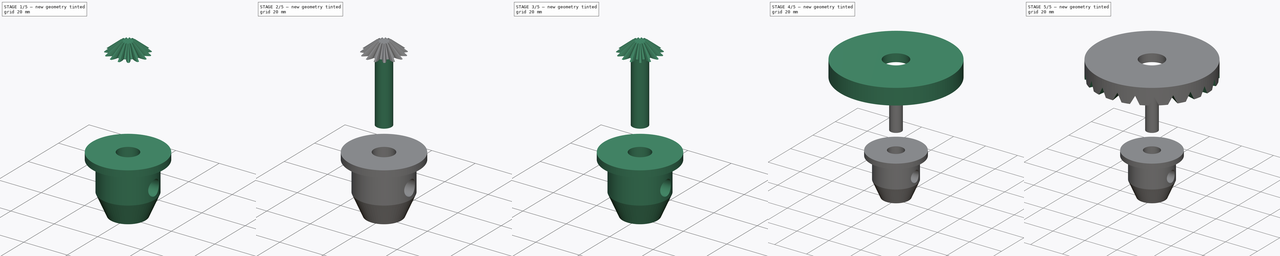
[diagram: build sequence overview — one tinted view per stage of 5, left to right]
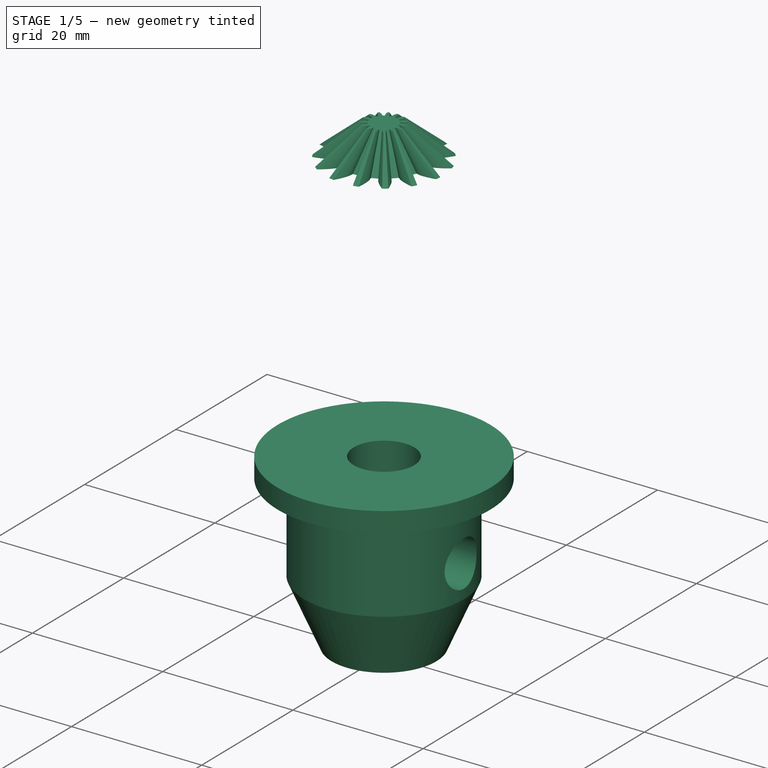
[diagram: stage 1 of 5 — iso view after this stage's code; geometry added in this stage tinted green]
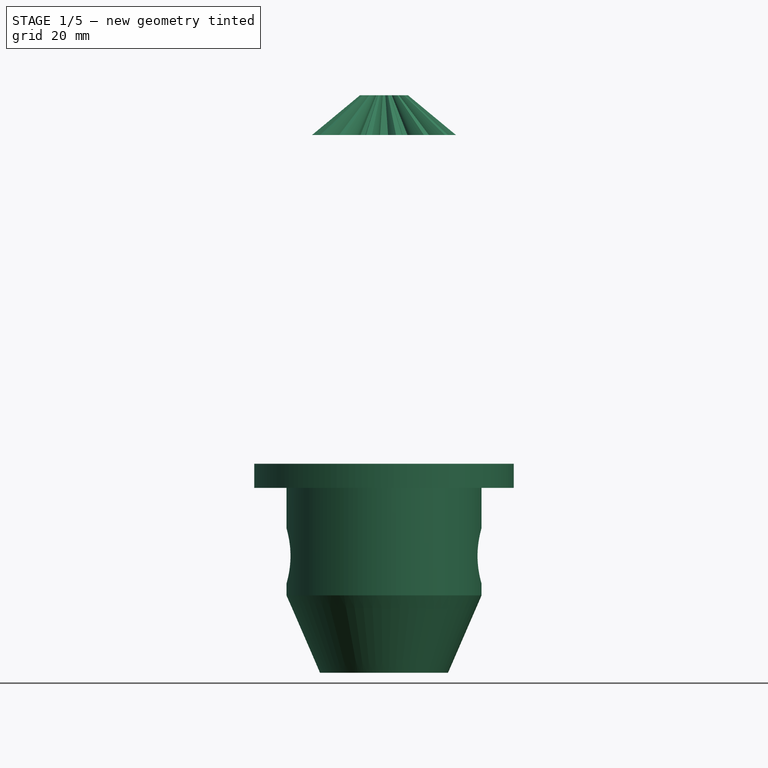
[diagram: stage 1 of 5 — front view after this stage's code; geometry added in this stage tinted green]
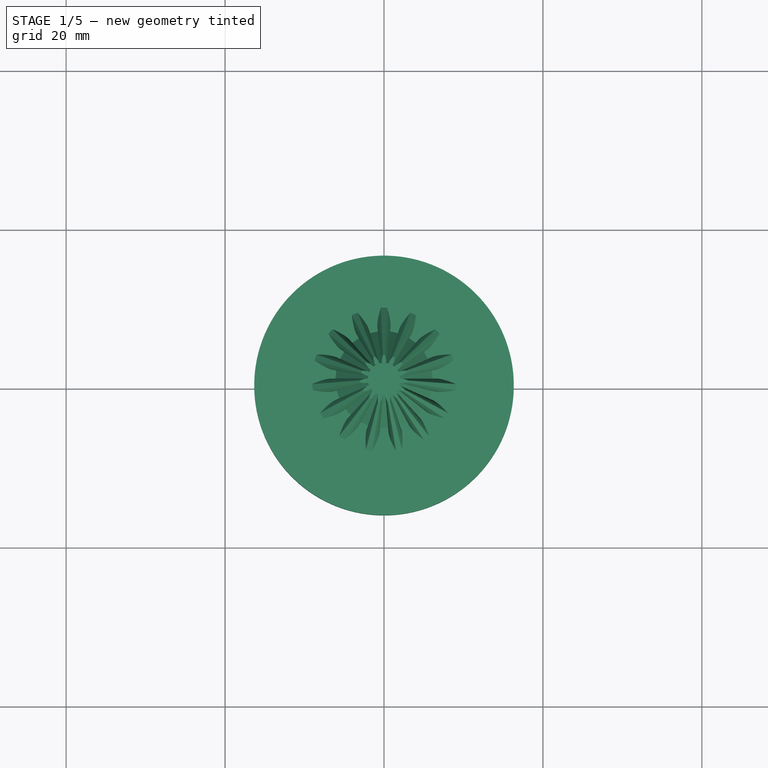
[diagram: stage 1 of 5 — top view after this stage's code; geometry added in this stage tinted green]
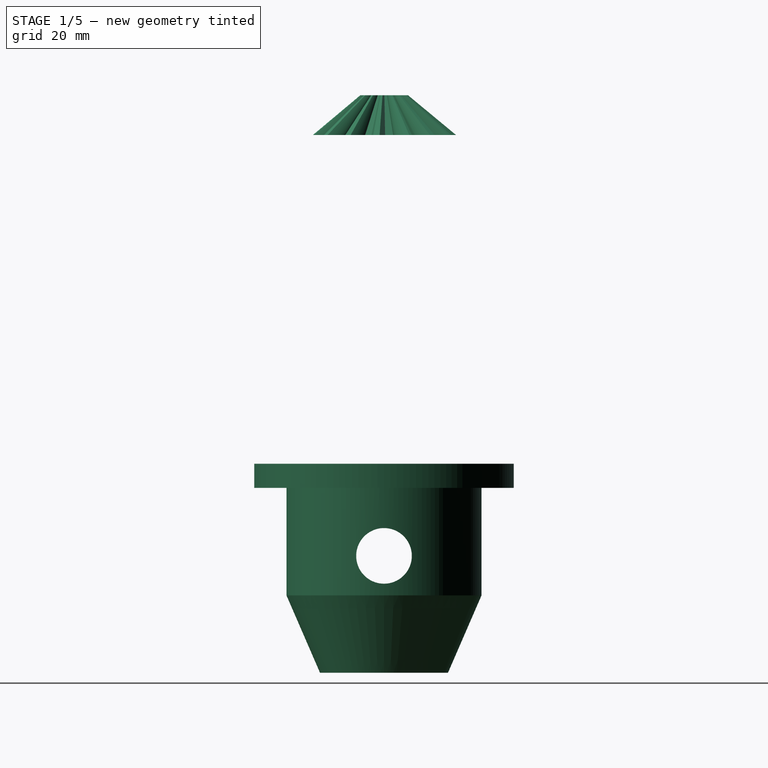
[diagram: stage 1 of 5 — right view after this stage's code; geometry added in this stage tinted green]
FCSTD DOCUMENT  (FreeCAD 0.21R33771 (Git))
Label: Differential Gear Design
License: All rights reserved
LicenseURL: http://en.wikipedia.org/wiki/All_rights_reserved
objects: Sketcher::SketchObject×12, PartDesign::Body×7, PartDesign::Pad×6, Part::FeaturePython×5, PartDesign::FeatureBase×5, PartDesign::Pocket×4, PartDesign::PolarPattern×1, PartDesign::MultiTransform×1, PartDesign::Revolution×1
note: 53 computed .brp shape members not serialized (recipe doc carries the construction recipe); baked Part::Feature solids carry a one-line shape summary decoded from their .brp

FEATURE [PartDesign::Body] Body004  label="Bevel004"
  BaseFeature = -> BevelGear003
  Group = -> [BaseFeature003,Sketch012,Pad004]
  Origin = -> Origin004
  Placement = pos=(8,7e-15,-8) rot=(0.707107,0,-0.707107;3.14159rad)
  Tip = -> Pad004
FEATURE [Part::FeaturePython] BevelGear004  # WARN: FeaturePython — macro-defined, semantics opaque (R4)
  AttacherType = Attacher::AttachEngine3D
  angular_backlash = 0
  backlash = 0
  beta = 0
  clearance = 0.1
  dw = 15
  height = 5
  module = 1
  numpoints = 20
  pitch_angle = 45
  pressure_angle = 20
  reset_origin = true
  teeth = 15
  version = 1.2.0
  expr: angular_backlash = backlash / dw * 360 ° / pi
  expr: dw = teeth * module
FEATURE [PartDesign::FeatureBase] BaseFeature004
  BaseFeature = -> BevelGear004
FEATURE [PartDesign::Body] Body005  label="Bevel005"
  BaseFeature = -> BevelGear004
  Group = -> [BaseFeature004,Sketch013,Pad005]
  Origin = -> Origin005
  Placement = pos=(-0.330464,-31.3067,-6.47571) rot=(-0.506732,0.57686,0.640668;1.92356rad)
  Tip = -> Pad005
FEATURE [Sketcher::SketchObject] Sketch
  FullyConstrained = false
  MapMode = 5
  Placement = pos=(0,0,0) rot=(1,0,0;1.5708rad)
  Support = -> [XZ_Plane006]
  sketch-geometry (8):
    g0: LineSegment StartX=4.64113 StartY=-57.9367 StartZ=0 EndX=4.64113 EndY=-67.6806 EndZ=0
    g1: LineSegment StartX=4.64113 StartY=-67.6806 StartZ=0 EndX=8.05151 EndY=-67.6806 EndZ=0
    g2: LineSegment StartX=8.05151 StartY=-67.6806 StartZ=0 EndX=12.277 EndY=-57.9367 EndZ=0
    g3: LineSegment StartX=16.3339 StartY=-44.4169 StartZ=0 EndX=16.3339 EndY=-41.372 EndZ=0
    g4: LineSegment StartX=16.3339 StartY=-41.372 StartZ=0 EndX=4.64113 EndY=-41.372 EndZ=0
    g5: LineSegment StartX=4.64113 StartY=-41.372 StartZ=0 EndX=4.64113 EndY=-57.9367 EndZ=0
    g6: LineSegment StartX=16.3339 StartY=-44.4169 StartZ=0 EndX=12.277 EndY=-44.4169 EndZ=0
    g7: LineSegment StartX=12.277 StartY=-44.4169 StartZ=0 EndX=12.277 EndY=-57.9367 EndZ=0
  constraints (15):
    c: Vertical(g0)
    c: Coincident(g1,g0)
    c: Horizontal(g1)
    c: Coincident(g2,g1)
    c: Coincident(g4,g3)
    c: Horizontal(g4)
    c: Coincident(g5,g4)
    c: Coincident(g5,g0)
    c: Vertical(g5)
    c: Vertical(g3)
    c: Coincident(g6,g3)
    c: Horizontal(g6)
    c: Coincident(g7,g6)
    c: Coincident(g7,g2)
    c: Vertical(g7)
FEATURE [PartDesign::Revolution] Revolution
  Angle = 360
  Axis = (0,2e-16,1)
  Base = (0,0,0)
  Placement = pos=(0,0,0) rot=(1,0,0;1.5708rad)
  Profile = -> Sketch
  ReferenceAxis = -> Sketch [V_Axis]
  Reversed = true
FEATURE [Sketcher::SketchObject] Sketch014
  FullyConstrained = true
  MapMode = 5
  Placement = pos=(0,0,0) rot=(0.57735,0.57735,0.57735;2.0944rad)
  Support = -> [YZ_Plane006]
FEATURE [Sketcher::SketchObject] Sketch015
  FullyConstrained = false
  MapMode = 5
  Placement = pos=(0,0,0) rot=(0.57735,0.57735,0.57735;2.0944rad)
  Support = -> [YZ_Plane006]
  sketch-geometry (1):
    g0: Circle CenterX=0 CenterY=-52.9697 CenterZ=0 NormalX=0 NormalY=0 NormalZ=1 AngleXU=0 Radius=3.5
  constraints (2):
    c: PointOnObject(g0,g-2)
    c: Diameter(g0) = 7
FEATURE [PartDesign::Pocket] Pocket003
  BaseFeature = -> Revolution
  Direction = (-1,2e-16,-3e-16)
  Length = 26
  Length2 = 5
  Midplane = true
  Placement = pos=(0,0,0) rot=(1,0,0;1.5708rad)
  Profile = -> Sketch015
  ReferenceAxis = -> Sketch015 [N_Axis]
  Type = 0
FEATURE [PartDesign::Body] Body006
  Group = -> [Sketch,Revolution,Sketch014,Sketch015,Pocket003]
  Origin = -> Origin006
  Placement = pos=(0,0,44) rot=(0,0,1;0rad)
  Tip = -> Pocket003
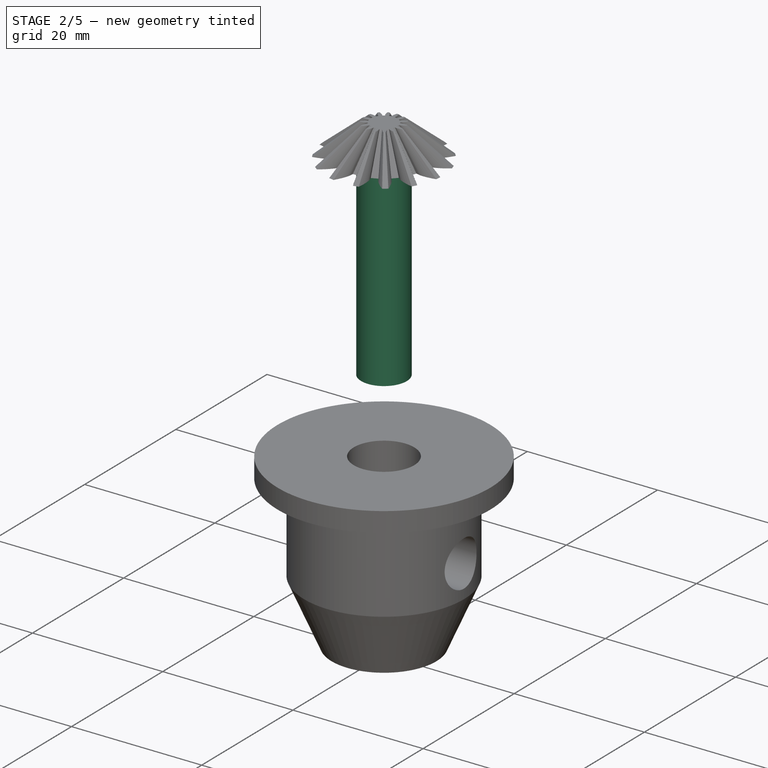
[diagram: stage 2 of 5 — iso view after this stage's code; geometry added in this stage tinted green]
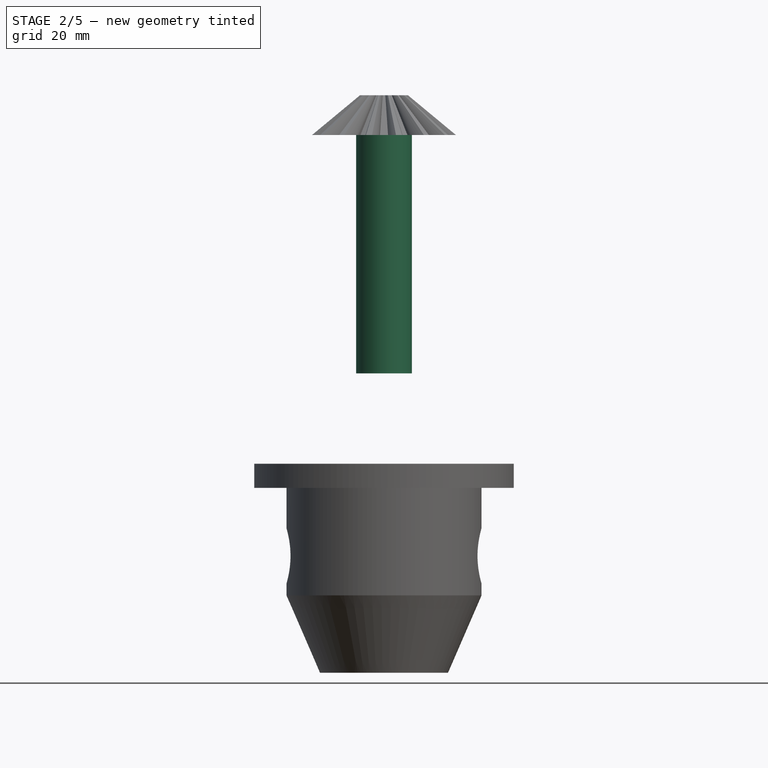
[diagram: stage 2 of 5 — front view after this stage's code; geometry added in this stage tinted green]
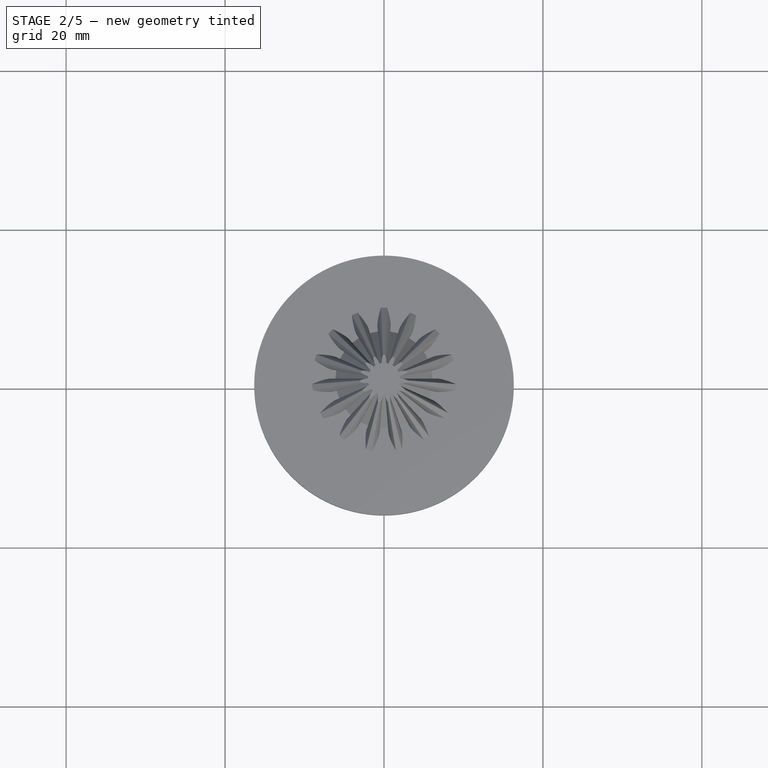
[diagram: stage 2 of 5 — top view after this stage's code; geometry added in this stage tinted green]
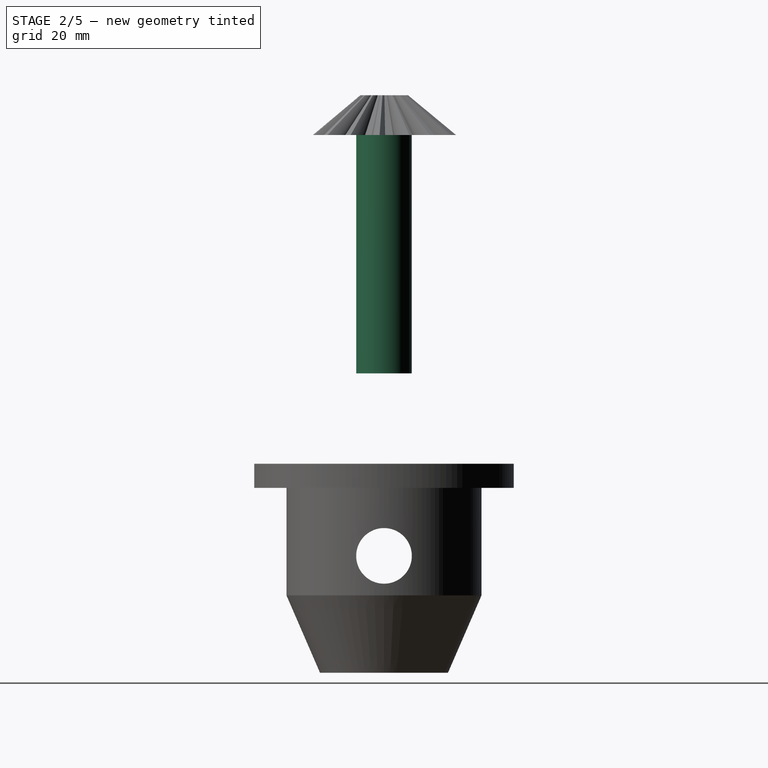
[diagram: stage 2 of 5 — right view after this stage's code; geometry added in this stage tinted green]
FEATURE [PartDesign::Body] Body002  label="Bevel002"
  BaseFeature = -> BevelGear001
  Group = -> [BaseFeature001,Sketch008,Pad002]
  Origin = -> Origin002
  Placement = pos=(4e-15,0,-16) rot=(0,1,0;0rad)
  Tip = -> Pad002
FEATURE [Part::FeaturePython] BevelGear002  # WARN: FeaturePython — macro-defined, semantics opaque (R4)
  AttacherType = Attacher::AttachEngine3D
  angular_backlash = 0
  backlash = 0
  beta = 0
  clearance = 0.1
  dw = 15
  height = 5
  module = 1
  numpoints = 20
  pitch_angle = 45
  pressure_angle = 20
  reset_origin = true
  teeth = 15
  version = 1.2.0
  expr: angular_backlash = backlash / dw * 360 ° / pi
  expr: dw = teeth * module
FEATURE [PartDesign::Body] Body003  label="Bevel003"
  BaseFeature = -> BevelGear002
  Group = -> [BaseFeature002,Sketch011,Pad003]
  Origin = -> Origin003
  Placement = pos=(-8,0,-8) rot=(0.103962,0.989133,0.103962;1.58172rad)
  Tip = -> Pad003
FEATURE [Part::FeaturePython] BevelGear003  # WARN: FeaturePython — macro-defined, semantics opaque (R4)
  AttacherType = Attacher::AttachEngine3D
  angular_backlash = 0
  backlash = 0
  beta = 0
  clearance = 0.1
  dw = 15
  height = 5
  module = 1
  numpoints = 20
  pitch_angle = 45
  pressure_angle = 20
  reset_origin = true
  teeth = 15
  version = 1.2.0
  expr: angular_backlash = backlash / dw * 360 ° / pi
  expr: dw = teeth * module
FEATURE [PartDesign::FeatureBase] BaseFeature003
  BaseFeature = -> BevelGear003
FEATURE [Sketcher::SketchObject] Sketch012
  FullyConstrained = true
  MapMode = 5
  Support = -> [XY_Plane004]
  sketch-geometry (1):
    g0: Circle CenterX=0 CenterY=0 CenterZ=0 NormalX=0 NormalY=0 NormalZ=1 AngleXU=0 Radius=3.5
  constraints (2):
    c: Coincident(g0,g-1)
    c: Diameter(g0) = 7
FEATURE [PartDesign::Pad] Pad004
  BaseFeature = -> BaseFeature003
  Direction = (0,0,1)
  Length = 30
  Length2 = 10
  Profile = -> Sketch012
  ReferenceAxis = -> Sketch012 [N_Axis]
  Reversed = true
  Type = 0
FEATURE [Sketcher::SketchObject] Sketch013
  FullyConstrained = true
  MapMode = 5
  Support = -> [XY_Plane005]
  sketch-geometry (1):
    g0: Circle CenterX=0 CenterY=0 CenterZ=0 NormalX=0 NormalY=0 NormalZ=1 AngleXU=0 Radius=3.5
  constraints (2):
    c: Coincident(g0,g-1)
    c: Diameter(g0) = 7
FEATURE [PartDesign::Pad] Pad005
  BaseFeature = -> BaseFeature004
  Direction = (0,0,1)
  Length = 30
  Length2 = 10
  Profile = -> Sketch013
  ReferenceAxis = -> Sketch013 [N_Axis]
  Reversed = true
  Type = 0
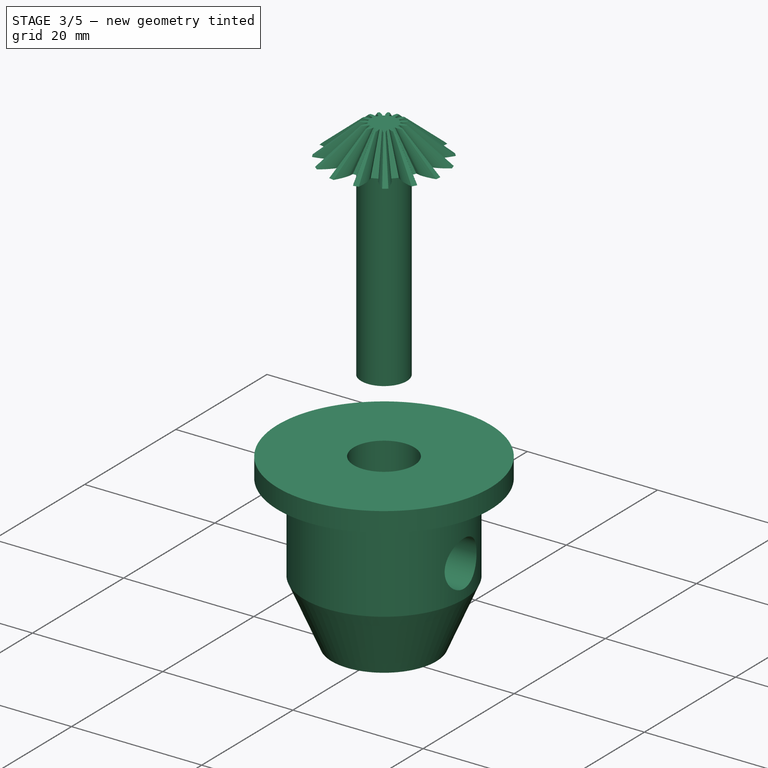
[diagram: stage 3 of 5 — iso view after this stage's code; geometry added in this stage tinted green]
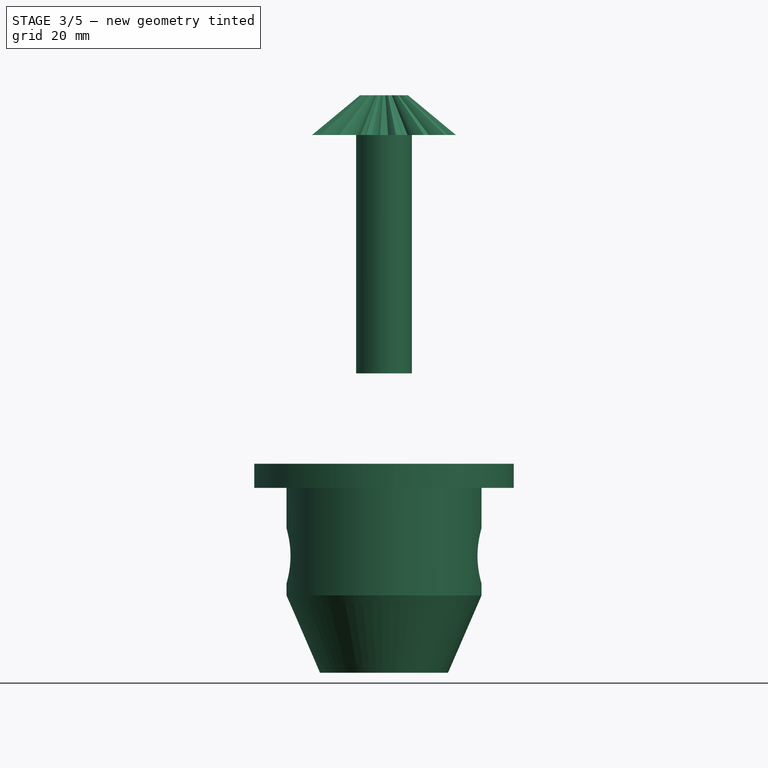
[diagram: stage 3 of 5 — front view after this stage's code; geometry added in this stage tinted green]
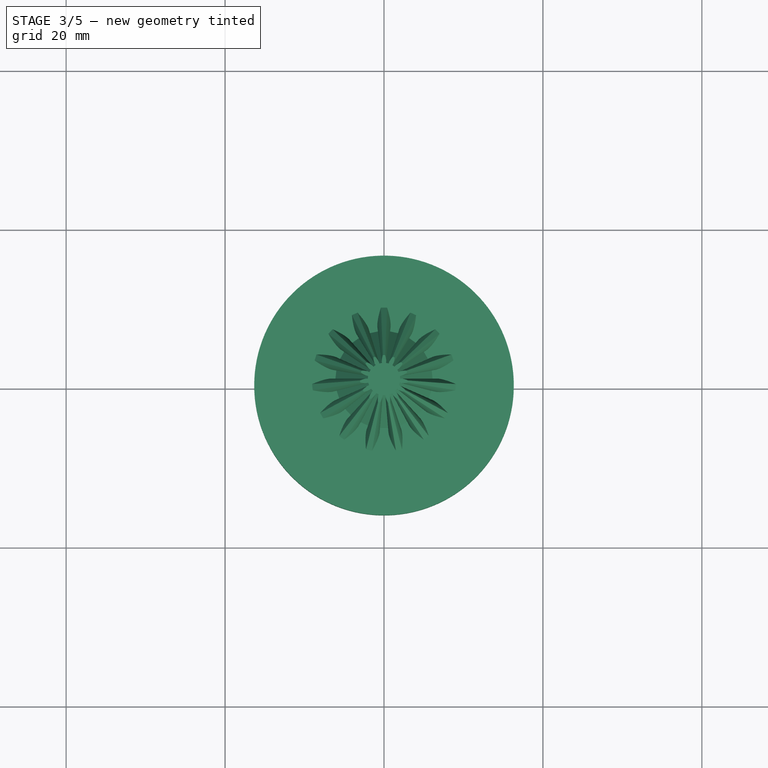
[diagram: stage 3 of 5 — top view after this stage's code; geometry added in this stage tinted green]
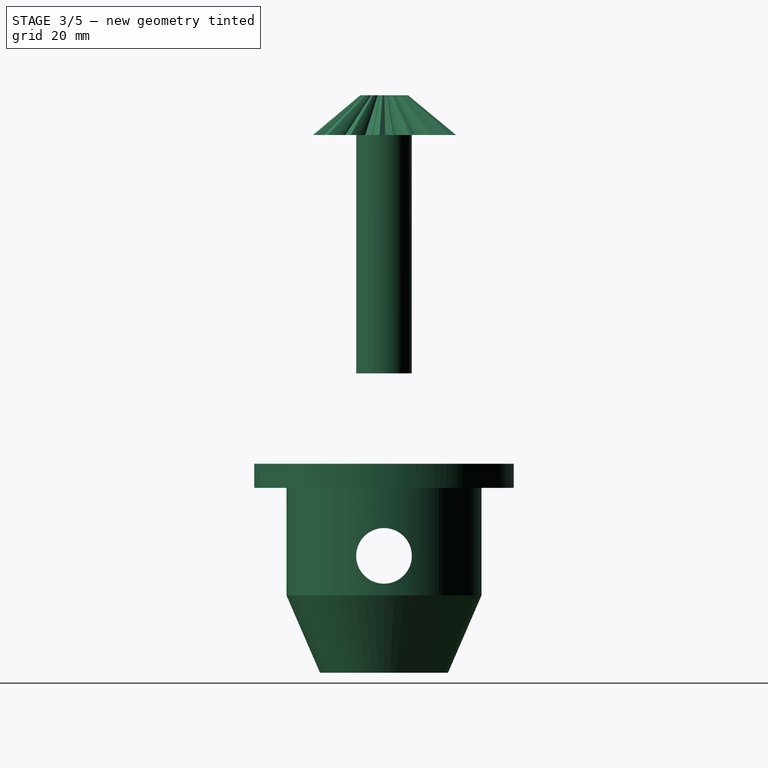
[diagram: stage 3 of 5 — right view after this stage's code; geometry added in this stage tinted green]
FEATURE [PartDesign::Body] Body001  label="Crown Wheel"
  Group = -> [Sketch003,Pad001,Sketch004,Pocket,Sketch005,Pocket001,Sketch006,Pocket002,MultiTransform,PolarPattern]
  Origin = -> Origin001
  Tip = -> MultiTransform
FEATURE [Part::FeaturePython] BevelGear001  # WARN: FeaturePython — macro-defined, semantics opaque (R4)
  AttacherType = Attacher::AttachEngine3D
  angular_backlash = 0
  backlash = 0
  beta = 0
  clearance = 0.1
  dw = 15
  height = 5
  module = 1
  numpoints = 20
  pitch_angle = 45
  pressure_angle = 20
  reset_origin = true
  teeth = 15
  version = 1.2.0
  expr: angular_backlash = backlash / dw * 360 ° / pi
  expr: dw = teeth * module
FEATURE [PartDesign::FeatureBase] BaseFeature001
  BaseFeature = -> BevelGear001
FEATURE [PartDesign::FeatureBase] BaseFeature002
  BaseFeature = -> BevelGear002
FEATURE [Sketcher::SketchObject] Sketch011
  FullyConstrained = true
  MapMode = 5
  Support = -> [XY_Plane003]
  sketch-geometry (1):
    g0: Circle CenterX=0 CenterY=0 CenterZ=0 NormalX=0 NormalY=0 NormalZ=1 AngleXU=0 Radius=3.5
  constraints (2):
    c: Coincident(g0,g-1)
    c: Diameter(g0) = 7
FEATURE [PartDesign::Pad] Pad003
  BaseFeature = -> BaseFeature002
  Direction = (0,0,1)
  Length = 30
  Length2 = 10
  Profile = -> Sketch011
  ReferenceAxis = -> Sketch011 [N_Axis]
  Reversed = true
  Type = 0
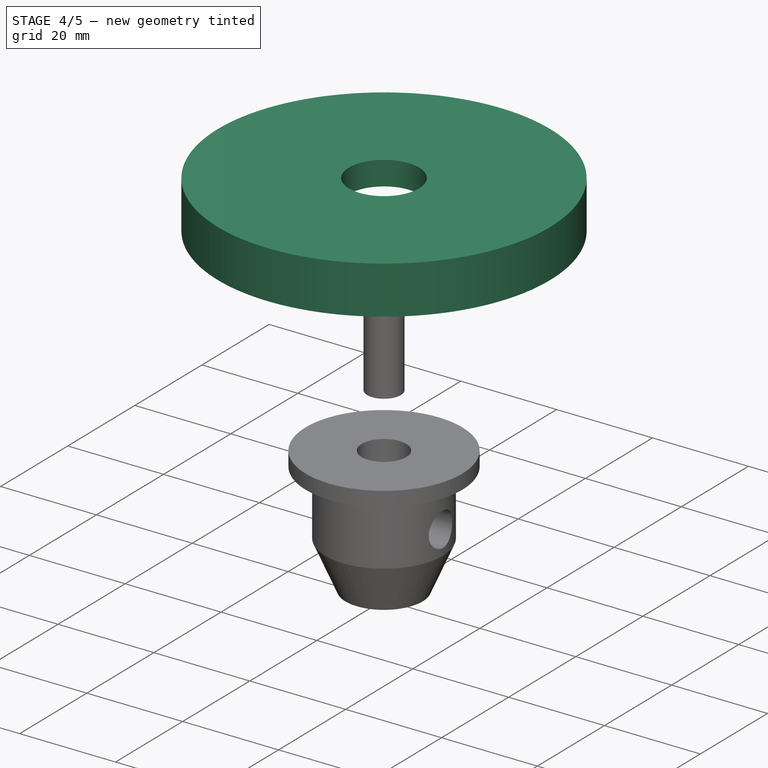
[diagram: stage 4 of 5 — iso view after this stage's code; geometry added in this stage tinted green]
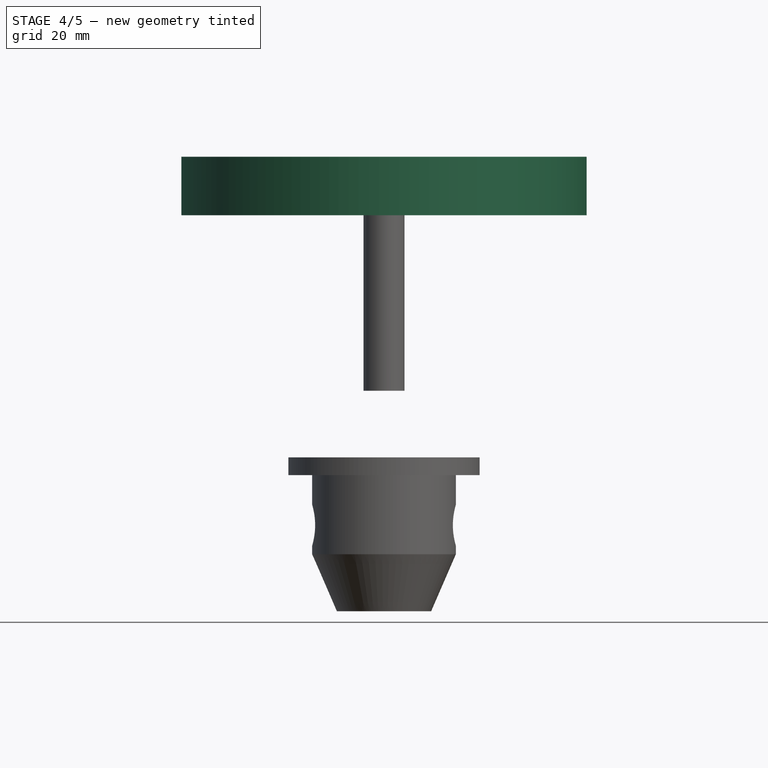
[diagram: stage 4 of 5 — front view after this stage's code; geometry added in this stage tinted green]
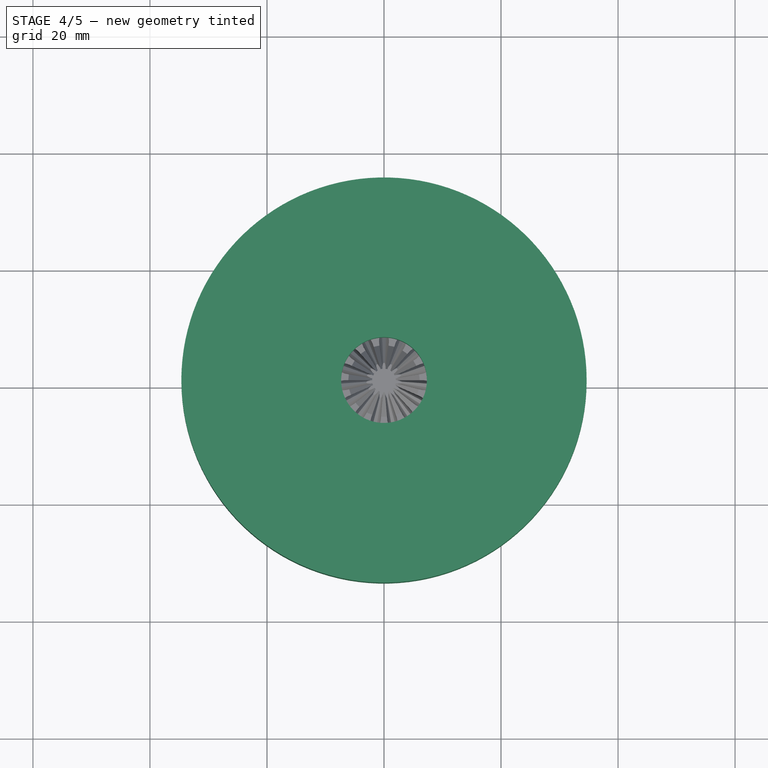
[diagram: stage 4 of 5 — top view after this stage's code; geometry added in this stage tinted green]
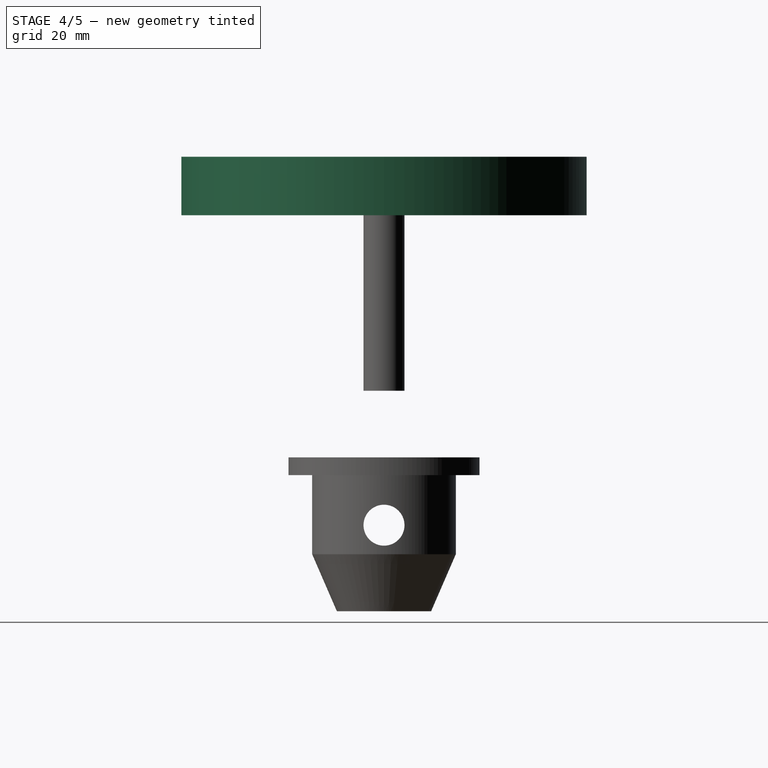
[diagram: stage 4 of 5 — right view after this stage's code; geometry added in this stage tinted green]
FEATURE [PartDesign::Body] Body  label="Bevel1"
  BaseFeature = -> BevelGear
  Group = -> [BaseFeature,Sketch001,Pad]
  Origin = -> Origin
  Placement = pos=(4e-15,0,0) rot=(0,1,0;3.14159rad)
  Tip = -> Pad
FEATURE [Sketcher::SketchObject] Sketch003
  FullyConstrained = false
  MapMode = 5
  Support = -> [XY_Plane001]
  sketch-geometry (1):
    g0: Circle CenterX=0 CenterY=0 CenterZ=0 NormalX=0 NormalY=0 NormalZ=1 AngleXU=0 Radius=34.6299
  constraints (1):
    c: Coincident(g0,g-1)
FEATURE [PartDesign::Pad] Pad001
  Direction = (0,0,1)
  Length = 10
  Length2 = 10
  Profile = -> Sketch003
  ReferenceAxis = -> Sketch003 [N_Axis]
  Type = 0
FEATURE [Sketcher::SketchObject] Sketch004
  FullyConstrained = false
  MapMode = 5
  Support = -> [XY_Plane001]
  sketch-geometry (1):
    g0: Circle CenterX=0 CenterY=0 CenterZ=0 NormalX=0 NormalY=0 NormalZ=1 AngleXU=0 Radius=21.3057
  constraints (1):
    c: Coincident(g0,g-1)
FEATURE [PartDesign::Pocket] Pocket
  BaseFeature = -> Pad001
  Direction = (0,0,-1)
  Length = 5
  Length2 = 5
  Profile = -> Sketch004
  ReferenceAxis = -> Sketch004 [N_Axis]
  Reversed = true
  Type = 0
FEATURE [Sketcher::SketchObject] Sketch005
  FullyConstrained = false
  MapMode = 5
  Support = -> [XY_Plane001]
  sketch-geometry (1):
    g0: Circle CenterX=0 CenterY=0 CenterZ=0 NormalX=0 NormalY=0 NormalZ=1 AngleXU=0 Radius=7.3298
  constraints (1):
    c: Coincident(g0,g-1)
FEATURE [PartDesign::Pocket] Pocket001
  BaseFeature = -> Pocket
  Direction = (0,0,-1)
  Length = 11
  Length2 = 5
  Profile = -> Sketch005
  ReferenceAxis = -> Sketch005 [N_Axis]
  Reversed = true
  Type = 0
FEATURE [Sketcher::SketchObject] Sketch006
  FullyConstrained = false
  MapMode = 5
  Placement = pos=(0,0,0) rot=(0.57735,0.57735,0.57735;2.0944rad)
  Support = -> [YZ_Plane001]
  sketch-geometry (3):
    g0: LineSegment StartX=0 StartY=0 StartZ=0 EndX=2.41047 EndY=4.96044 EndZ=0
    g1: LineSegment StartX=2.41047 StartY=4.96044 StartZ=0 EndX=5.17945 EndY=0 EndZ=0
    g2: LineSegment StartX=0 StartY=0 StartZ=0 EndX=5.17945 EndY=0 EndZ=0
  constraints (5):
    c: Coincident(g0,g-1)
    c: Coincident(g1,g0)
    c: Coincident(g2,g0)
    c: Coincident(g2,g1)
    c: Horizontal(g2)
FEATURE [PartDesign::Pocket] Pocket002
  BaseFeature = -> Pocket001
  Direction = (-1,2e-16,-3e-16)
  Length = 38
  Length2 = 5
  Profile = -> Sketch006
  ReferenceAxis = -> Sketch006 [N_Axis]
  Type = 0
FEATURE [Sketcher::SketchObject] Sketch008
  FullyConstrained = true
  MapMode = 5
  Support = -> [XY_Plane002]
  sketch-geometry (1):
    g0: Circle CenterX=0 CenterY=0 CenterZ=0 NormalX=0 NormalY=0 NormalZ=1 AngleXU=0 Radius=3.5
  constraints (2):
    c: Coincident(g0,g-1)
    c: Diameter(g0) = 7
FEATURE [PartDesign::Pad] Pad002
  BaseFeature = -> BaseFeature001
  Direction = (0,0,1)
  Length = 30
  Length2 = 10
  Profile = -> Sketch008
  ReferenceAxis = -> Sketch008 [N_Axis]
  Reversed = true
  Type = 0
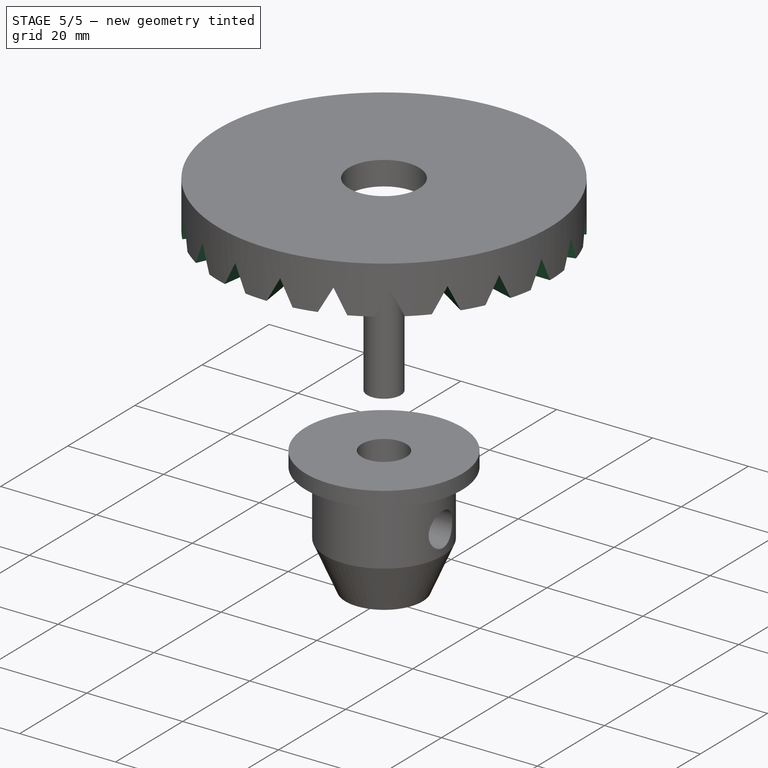
[diagram: stage 5 of 5 — iso view after this stage's code; geometry added in this stage tinted green]
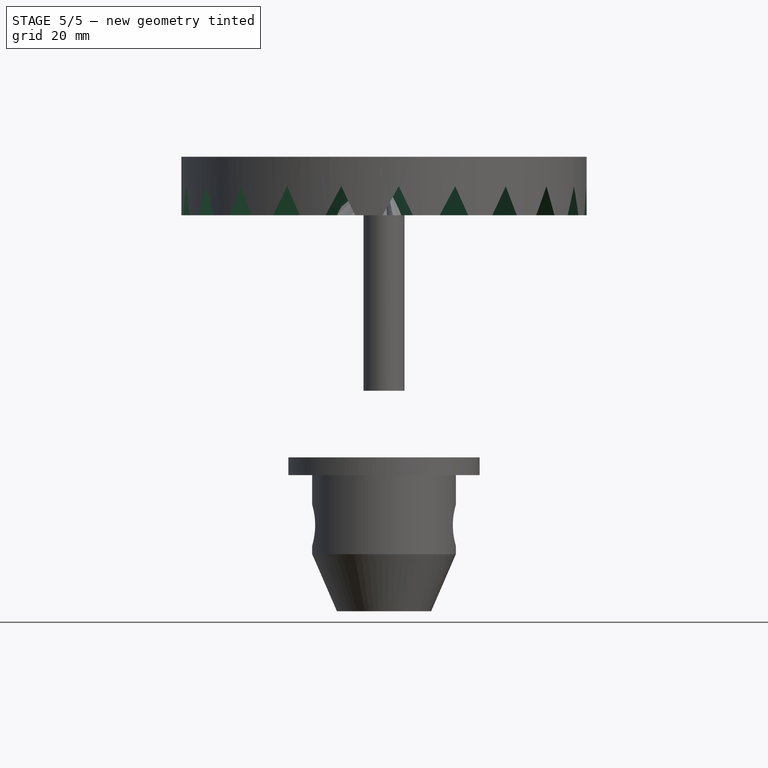
[diagram: stage 5 of 5 — front view after this stage's code; geometry added in this stage tinted green]
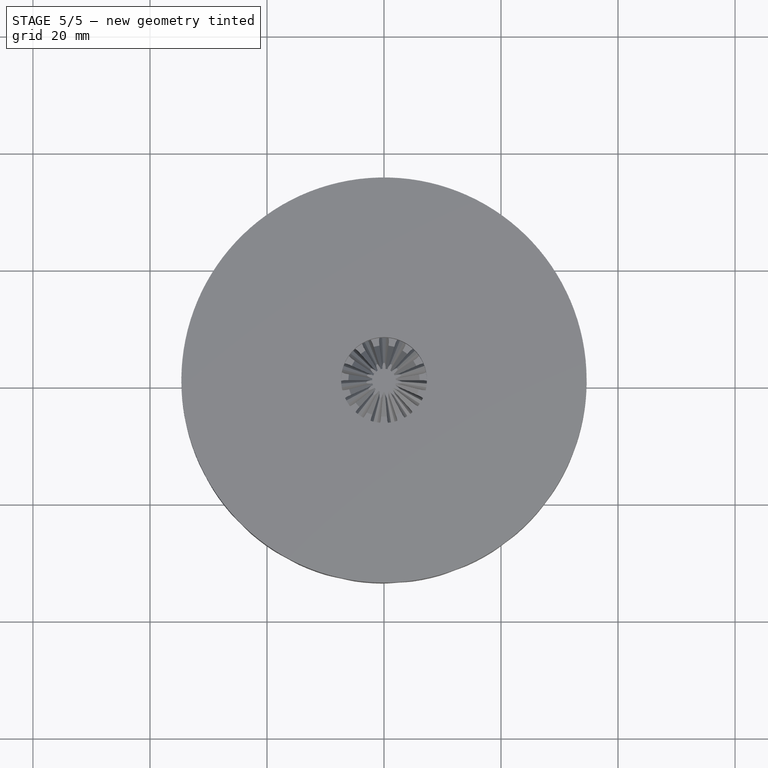
[diagram: stage 5 of 5 — top view after this stage's code; geometry added in this stage tinted green]
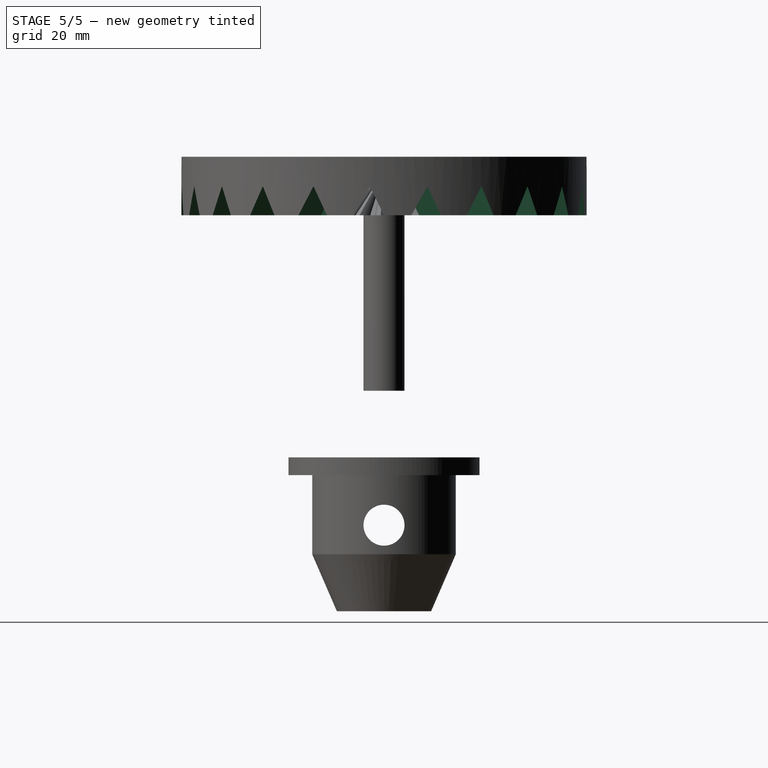
[diagram: stage 5 of 5 — right view after this stage's code; geometry added in this stage tinted green]
FEATURE [Part::FeaturePython] BevelGear  # WARN: FeaturePython — macro-defined, semantics opaque (R4)
  AttacherType = Attacher::AttachEngine3D
  angular_backlash = 0
  backlash = 0
  beta = 0
  clearance = 0.1
  dw = 15
  height = 5
  module = 1
  numpoints = 20
  pitch_angle = 45
  pressure_angle = 20
  reset_origin = true
  teeth = 15
  version = 1.2.0
  expr: angular_backlash = backlash / dw * 360 ° / pi
  expr: dw = teeth * module
FEATURE [Sketcher::SketchObject] Sketch001
  FullyConstrained = true
  MapMode = 5
  Support = -> [XY_Plane]
  sketch-geometry (1):
    g0: Circle CenterX=0 CenterY=0 CenterZ=0 NormalX=0 NormalY=0 NormalZ=1 AngleXU=0 Radius=3.5
  constraints (2):
    c: Coincident(g0,g-1)
    c: Diameter(g0) = 7
FEATURE [PartDesign::FeatureBase] BaseFeature
  BaseFeature = -> BevelGear
FEATURE [PartDesign::Pad] Pad
  BaseFeature = -> BaseFeature
  Direction = (0,0,1)
  Length = 30
  Length2 = 10
  Profile = -> Sketch001
  ReferenceAxis = -> Sketch001 [N_Axis]
  Reversed = true
  Type = 0
FEATURE [PartDesign::PolarPattern] PolarPattern
  Angle = 360
  Axis = -> Z_Axis001
  Occurrences = 22
FEATURE [PartDesign::MultiTransform] MultiTransform
  BaseFeature = -> Pocket002
  Originals = -> [Pocket002]
  Transformations = -> [PolarPattern]
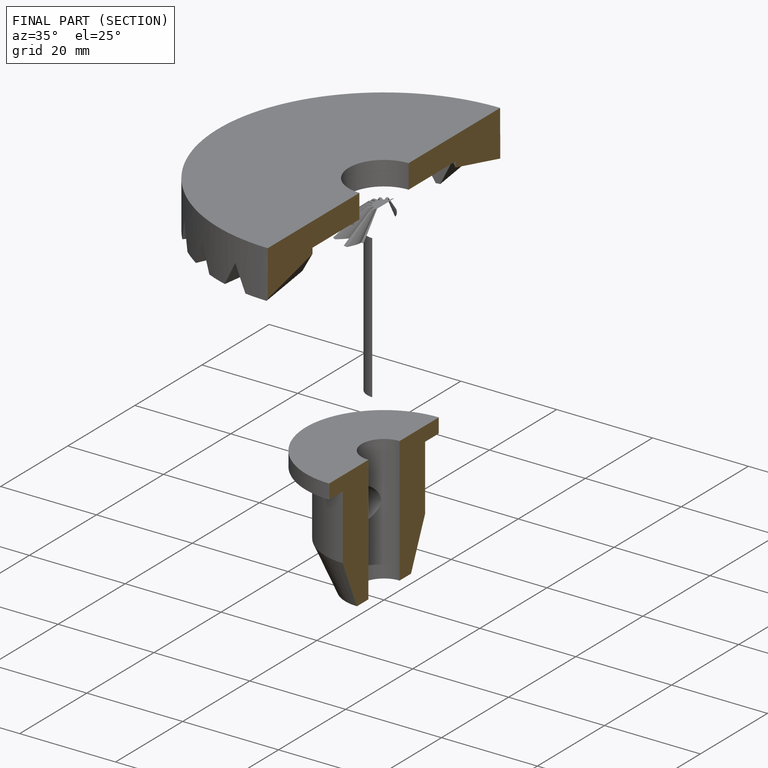
[diagram: finished part — half-section view (interior)]
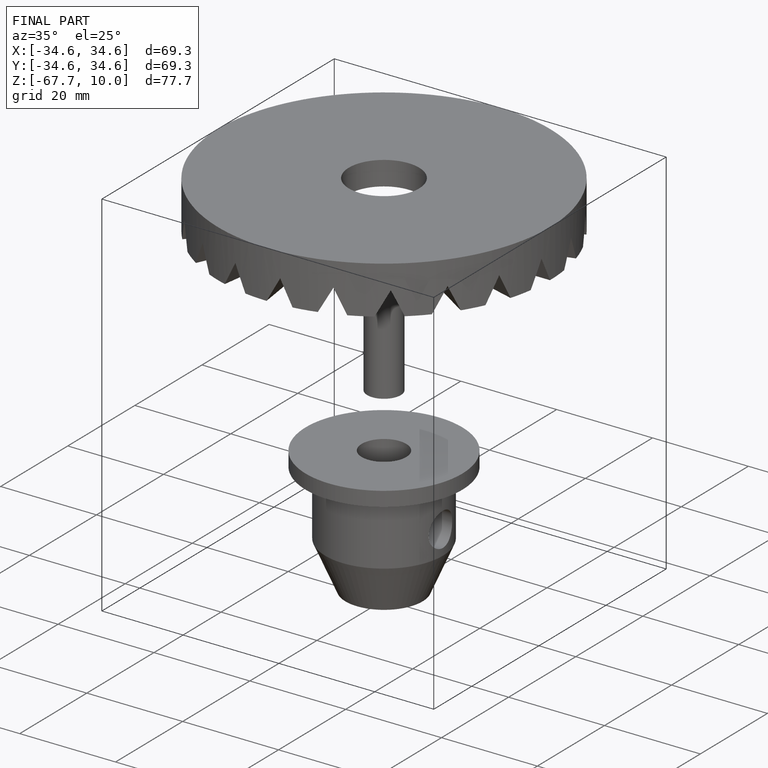
[diagram: finished part — iso view with bounding-box wireframe]
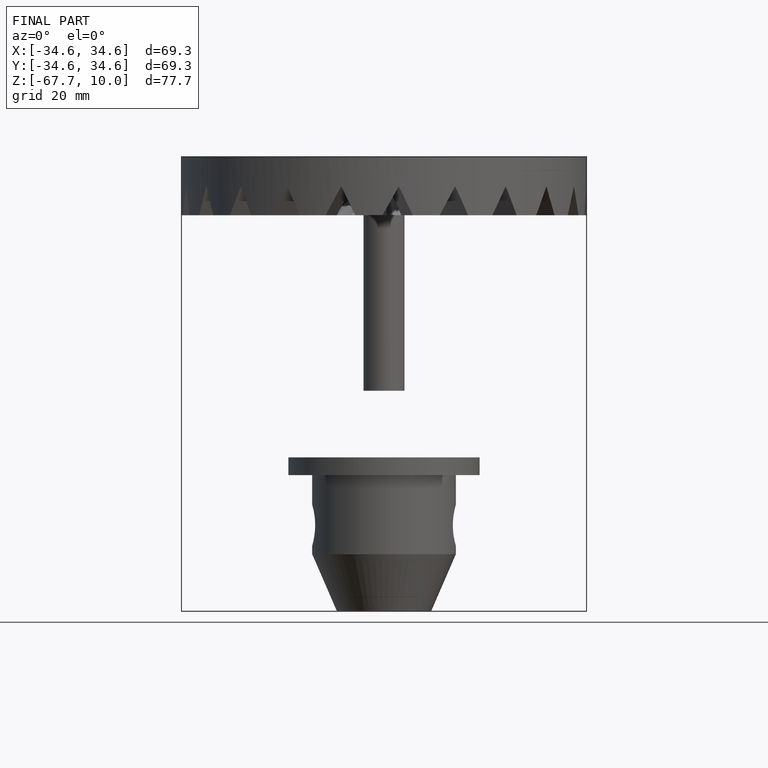
[diagram: finished part — front view with bounding-box wireframe]
